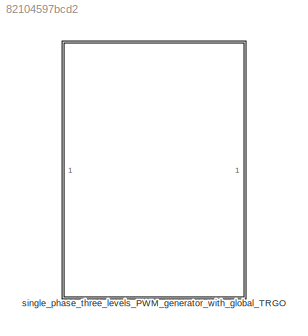
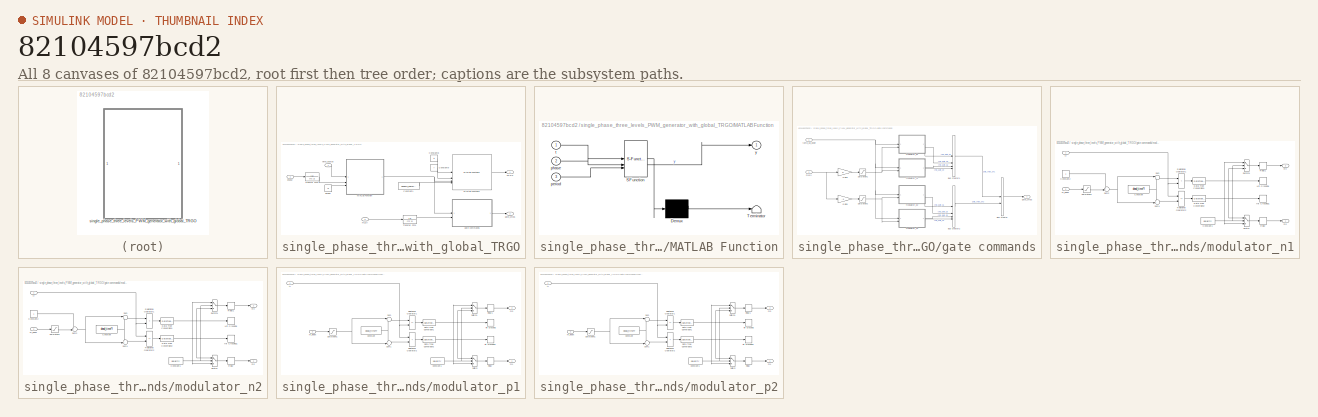
[diagram: thumbnail index - all 8 canvases of the model, root first then tree order]
MODEL slx_82104597bcd2
KIND library
CONFIG AbsTol = auto
CONFIG EnableMultiTasking = off
CONFIG FixedStep = auto
CONFIG MaxStep = auto
CONFIG MinStep = auto
CONFIG RelTol = 1e-3
CONFIG SampleTimeConstraint = Unconstrained
CONFIG SolverName = VariableStepAuto
CONFIG StartTime = 0.0
CONFIG StopTime = 10.0
BLOCK [SubSystem] single_phase_three_levels_PWM_generator_with_global_TRGO
BLOCK [Constant] single_phase_three_levels_PWM_generator_with_global_TRGO/Constant1
  Value = double_sampling
BLOCK [Constant] single_phase_three_levels_PWM_generator_with_global_TRGO/Constant8
  Value = tc
BLOCK [Constant] single_phase_three_levels_PWM_generator_with_global_TRGO/Constant9
  Value = f
BLOCK [SubSystem] single_phase_three_levels_PWM_generator_with_global_TRGO/MATLAB Function
  ErrorFcn = Stateflow.Translate.translate
  PermitHierarchicalResolution = ExplicitOnly
  SFBlockType = MATLAB Function
  SystemSampleTime = tc
  TreatAsAtomicUnit = on
BLOCK [Demux] single_phase_three_levels_PWM_generator_with_global_TRGO/MATLAB Function/ Demux 
  Outputs = 1
BLOCK [S-Function] single_phase_three_levels_PWM_generator_with_global_TRGO/MATLAB Function/ SFunction 
  EnableBusSupport = off
  FunctionName = sf_sfun
  PortCounts = [3 2]
  SFcnIsStateOwnerBlock = off
  SFunctionDeploymentMode = off
  Tag = Stateflow S-Function 61
BLOCK [Terminator] single_phase_three_levels_PWM_generator_with_global_TRGO/MATLAB Function/ Terminator 
BLOCK [Inport] single_phase_three_levels_PWM_generator_with_global_TRGO/MATLAB Function/period
  Port = 3
BLOCK [Inport] single_phase_three_levels_PWM_generator_with_global_TRGO/MATLAB Function/phase
  Port = 2
BLOCK [Inport] single_phase_three_levels_PWM_generator_with_global_TRGO/MATLAB Function/t
BLOCK [Outport] single_phase_three_levels_PWM_generator_with_global_TRGO/MATLAB Function/y
BLOCK [Reference] single_phase_three_levels_PWM_generator_with_global_TRGO/MATLAB Function1  REF=single_phase_pwm_modulator/Single phase two level PWM generator with global TRGO/MATLAB Function1  (lib defined in slx_75f7217e4d56)
  SourceBlock = single_phase_pwm_modulator/Single phase two level PWM generator with global TRGO/MATLAB Function1
  SourceType = SubSystem
BLOCK [Outport] single_phase_three_levels_PWM_generator_with_global_TRGO/TRGO
BLOCK [TransferFcn] single_phase_three_levels_PWM_generator_with_global_TRGO/Transfer Fcn1
  Denominator = [tc 1]
BLOCK [TransferFcn] single_phase_three_levels_PWM_generator_with_global_TRGO/Transfer Fcn2
  Denominator = [tc 1]
BLOCK [SubSystem] single_phase_three_levels_PWM_generator_with_global_TRGO/gate commands
BLOCK [BusCreator] single_phase_three_levels_PWM_generator_with_global_TRGO/gate commands/Bus Creator
  DisplayOption = bar
  InheritFromInputs = on
  Inputs = 2
BLOCK [BusCreator] single_phase_three_levels_PWM_generator_with_global_TRGO/gate commands/Bus Creator1
  DisplayOption = bar
  InheritFromInputs = on
  Inputs = 4
BLOCK [BusCreator] single_phase_three_levels_PWM_generator_with_global_TRGO/gate commands/Bus Creator2
  DisplayOption = bar
  InheritFromInputs = on
  Inputs = 4
BLOCK [Gain] single_phase_three_levels_PWM_generator_with_global_TRGO/gate commands/Gain3
BLOCK [Gain] single_phase_three_levels_PWM_generator_with_global_TRGO/gate commands/Gain5
  Gain = -1
BLOCK [Saturate] single_phase_three_levels_PWM_generator_with_global_TRGO/gate commands/Saturation1
  LowerLimit = m_low
  UpperLimit = m_up
BLOCK [Saturate] single_phase_three_levels_PWM_generator_with_global_TRGO/gate commands/Saturation2
  LowerLimit = m_low
  UpperLimit = m_up
BLOCK [Outport] single_phase_three_levels_PWM_generator_with_global_TRGO/gate commands/gate_cmds
BLOCK [Inport] single_phase_three_levels_PWM_generator_with_global_TRGO/gate commands/m12()
  Port = 2
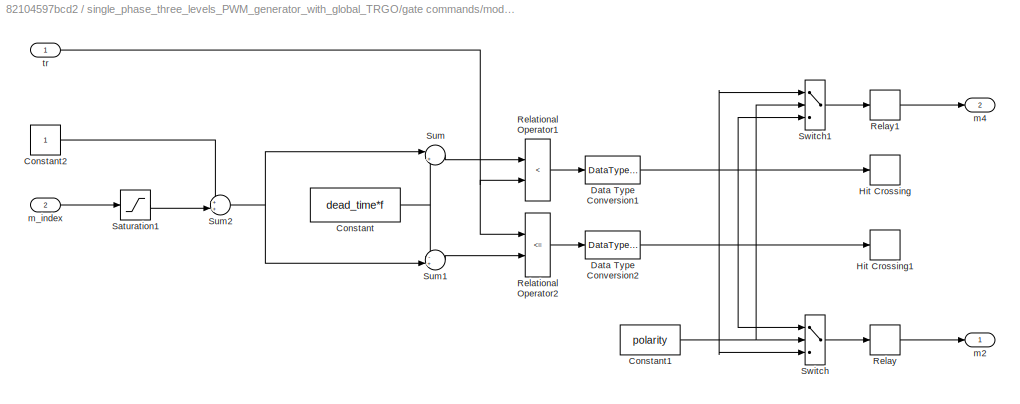
BLOCK [SubSystem] single_phase_three_levels_PWM_generator_with_global_TRGO/gate commands/modulator_n1
BLOCK [Constant] single_phase_three_levels_PWM_generator_with_global_TRGO/gate commands/modulator_n1/Constant
  Value = dead_time*f
BLOCK [Constant] single_phase_three_levels_PWM_generator_with_global_TRGO/gate commands/modulator_n1/Constant1
  Value = polarity
BLOCK [Constant] single_phase_three_levels_PWM_generator_with_global_TRGO/gate commands/modulator_n1/Constant2
BLOCK [DataTypeConversion] single_phase_three_levels_PWM_generator_with_global_TRGO/gate commands/modulator_n1/Data Type Conversion1
  OutDataTypeStr = double
BLOCK [DataTypeConversion] single_phase_three_levels_PWM_generator_with_global_TRGO/gate commands/modulator_n1/Data Type Conversion2
  OutDataTypeStr = double
BLOCK [HitCross] single_phase_three_levels_PWM_generator_with_global_TRGO/gate commands/modulator_n1/Hit Crossing
  ShowOutputPort = off
BLOCK [HitCross] single_phase_three_levels_PWM_generator_with_global_TRGO/gate commands/modulator_n1/Hit Crossing1
  ShowOutputPort = off
BLOCK [RelationalOperator] single_phase_three_levels_PWM_generator_with_global_TRGO/gate commands/modulator_n1/Relational Operator1
  InputSameDT = off
  Operator = <
BLOCK [RelationalOperator] single_phase_three_levels_PWM_generator_with_global_TRGO/gate commands/modulator_n1/Relational Operator2
  InputSameDT = off
  Operator = <=
BLOCK [Relay] single_phase_three_levels_PWM_generator_with_global_TRGO/gate commands/modulator_n1/Relay
  OffOutputValue = neg_cmd_gate
  OnOutputValue = pos_cmd_gate
BLOCK [Relay] single_phase_three_levels_PWM_generator_with_global_TRGO/gate commands/modulator_n1/Relay1
  OffOutputValue = neg_cmd_gate
  OnOutputValue = pos_cmd_gate
BLOCK [Saturate] single_phase_three_levels_PWM_generator_with_global_TRGO/gate commands/modulator_n1/Saturation1
  LowerLimit = m_low
  UpperLimit = 0
BLOCK [Sum] single_phase_three_levels_PWM_generator_with_global_TRGO/gate commands/modulator_n1/Sum
  Inputs = |++
  SaturateOnIntegerOverflow = on
BLOCK [Sum] single_phase_three_levels_PWM_generator_with_global_TRGO/gate commands/modulator_n1/Sum1
  Inputs = -+|
  SaturateOnIntegerOverflow = on
BLOCK [Sum] single_phase_three_levels_PWM_generator_with_global_TRGO/gate commands/modulator_n1/Sum2
  Inputs = ++|
  SaturateOnIntegerOverflow = on
BLOCK [Switch] single_phase_three_levels_PWM_generator_with_global_TRGO/gate commands/modulator_n1/Switch
  Criteria = u2 > Threshold
  InputSameDT = off
  SaturateOnIntegerOverflow = off
BLOCK [Switch] single_phase_three_levels_PWM_generator_with_global_TRGO/gate commands/modulator_n1/Switch1
  Criteria = u2 > Threshold
  InputSameDT = off
  SaturateOnIntegerOverflow = off
BLOCK [Outport] single_phase_three_levels_PWM_generator_with_global_TRGO/gate commands/modulator_n1/m2
BLOCK [Outport] single_phase_three_levels_PWM_generator_with_global_TRGO/gate commands/modulator_n1/m4
  Port = 2
BLOCK [Inport] single_phase_three_levels_PWM_generator_with_global_TRGO/gate commands/modulator_n1/m_index
  Port = 2
BLOCK [Inport] single_phase_three_levels_PWM_generator_with_global_TRGO/gate commands/modulator_n1/tr
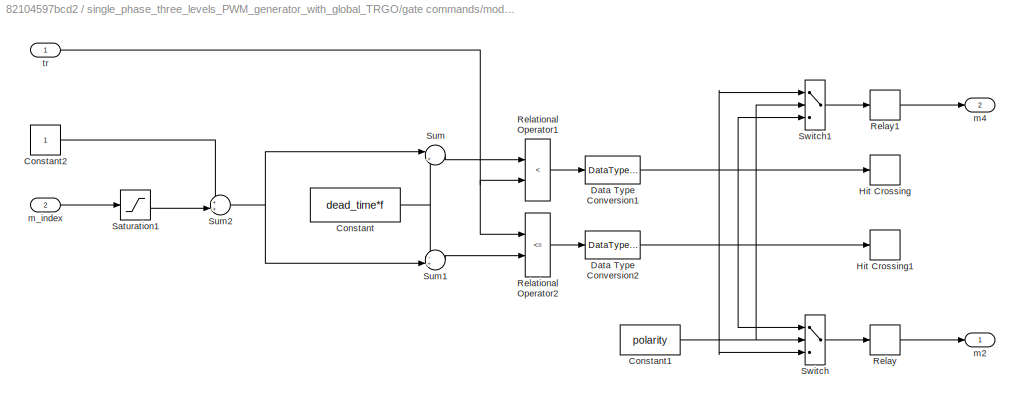
BLOCK [SubSystem] single_phase_three_levels_PWM_generator_with_global_TRGO/gate commands/modulator_n2
BLOCK [Constant] single_phase_three_levels_PWM_generator_with_global_TRGO/gate commands/modulator_n2/Constant
  Value = dead_time*f
BLOCK [Constant] single_phase_three_levels_PWM_generator_with_global_TRGO/gate commands/modulator_n2/Constant1
  Value = polarity
BLOCK [Constant] single_phase_three_levels_PWM_generator_with_global_TRGO/gate commands/modulator_n2/Constant2
BLOCK [DataTypeConversion] single_phase_three_levels_PWM_generator_with_global_TRGO/gate commands/modulator_n2/Data Type Conversion1
  OutDataTypeStr = double
BLOCK [DataTypeConversion] single_phase_three_levels_PWM_generator_with_global_TRGO/gate commands/modulator_n2/Data Type Conversion2
  OutDataTypeStr = double
BLOCK [HitCross] single_phase_three_levels_PWM_generator_with_global_TRGO/gate commands/modulator_n2/Hit Crossing
  ShowOutputPort = off
BLOCK [HitCross] single_phase_three_levels_PWM_generator_with_global_TRGO/gate commands/modulator_n2/Hit Crossing1
  ShowOutputPort = off
BLOCK [RelationalOperator] single_phase_three_levels_PWM_generator_with_global_TRGO/gate commands/modulator_n2/Relational Operator1
  InputSameDT = off
  Operator = <
BLOCK [RelationalOperator] single_phase_three_levels_PWM_generator_with_global_TRGO/gate commands/modulator_n2/Relational Operator2
  InputSameDT = off
  Operator = <=
BLOCK [Relay] single_phase_three_levels_PWM_generator_with_global_TRGO/gate commands/modulator_n2/Relay
  OffOutputValue = neg_cmd_gate
  OnOutputValue = pos_cmd_gate
BLOCK [Relay] single_phase_three_levels_PWM_generator_with_global_TRGO/gate commands/modulator_n2/Relay1
  OffOutputValue = neg_cmd_gate
  OnOutputValue = pos_cmd_gate
BLOCK [Saturate] single_phase_three_levels_PWM_generator_with_global_TRGO/gate commands/modulator_n2/Saturation1
  LowerLimit = m_low
  UpperLimit = 0
BLOCK [Sum] single_phase_three_levels_PWM_generator_with_global_TRGO/gate commands/modulator_n2/Sum
  Inputs = |++
  SaturateOnIntegerOverflow = on
BLOCK [Sum] single_phase_three_levels_PWM_generator_with_global_TRGO/gate commands/modulator_n2/Sum1
  Inputs = -+|
  SaturateOnIntegerOverflow = on
BLOCK [Sum] single_phase_three_levels_PWM_generator_with_global_TRGO/gate commands/modulator_n2/Sum2
  Inputs = ++|
  SaturateOnIntegerOverflow = on
BLOCK [Switch] single_phase_three_levels_PWM_generator_with_global_TRGO/gate commands/modulator_n2/Switch
  Criteria = u2 > Threshold
  InputSameDT = off
  SaturateOnIntegerOverflow = off
BLOCK [Switch] single_phase_three_levels_PWM_generator_with_global_TRGO/gate commands/modulator_n2/Switch1
  Criteria = u2 > Threshold
  InputSameDT = off
  SaturateOnIntegerOverflow = off
BLOCK [Outport] single_phase_three_levels_PWM_generator_with_global_TRGO/gate commands/modulator_n2/m2
BLOCK [Outport] single_phase_three_levels_PWM_generator_with_global_TRGO/gate commands/modulator_n2/m4
  Port = 2
BLOCK [Inport] single_phase_three_levels_PWM_generator_with_global_TRGO/gate commands/modulator_n2/m_index
  Port = 2
BLOCK [Inport] single_phase_three_levels_PWM_generator_with_global_TRGO/gate commands/modulator_n2/tr
BLOCK [SubSystem] single_phase_three_levels_PWM_generator_with_global_TRGO/gate commands/modulator_p1
BLOCK [Constant] single_phase_three_levels_PWM_generator_with_global_TRGO/gate commands/modulator_p1/Constant
  Value = dead_time*f
BLOCK [Constant] single_phase_three_levels_PWM_generator_with_global_TRGO/gate commands/modulator_p1/Constant1
  Value = polarity
BLOCK [DataTypeConversion] single_phase_three_levels_PWM_generator_with_global_TRGO/gate commands/modulator_p1/Data Type Conversion1
  OutDataTypeStr = double
BLOCK [DataTypeConversion] single_phase_three_levels_PWM_generator_with_global_TRGO/gate commands/modulator_p1/Data Type Conversion2
  OutDataTypeStr = double
BLOCK [HitCross] single_phase_three_levels_PWM_generator_with_global_TRGO/gate commands/modulator_p1/Hit Crossing
  ShowOutputPort = off
BLOCK [HitCross] single_phase_three_levels_PWM_generator_with_global_TRGO/gate commands/modulator_p1/Hit Crossing1
  ShowOutputPort = off
BLOCK [RelationalOperator] single_phase_three_levels_PWM_generator_with_global_TRGO/gate commands/modulator_p1/Relational Operator1
  InputSameDT = off
  Operator = <=
BLOCK [RelationalOperator] single_phase_three_levels_PWM_generator_with_global_TRGO/gate commands/modulator_p1/Relational Operator2
  InputSameDT = off
  Operator = <
BLOCK [Relay] single_phase_three_levels_PWM_generator_with_global_TRGO/gate commands/modulator_p1/Relay
  OffOutputValue = neg_cmd_gate
  OnOutputValue = pos_cmd_gate
  OnSwitchValue = 2*eps
BLOCK [Relay] single_phase_three_levels_PWM_generator_with_global_TRGO/gate commands/modulator_p1/Relay1
  OffOutputValue = neg_cmd_gate
  OnOutputValue = pos_cmd_gate
BLOCK [Saturate] single_phase_three_levels_PWM_generator_with_global_TRGO/gate commands/modulator_p1/Saturation1
  LowerLimit = 0
  UpperLimit = m_up
BLOCK [Sum] single_phase_three_levels_PWM_generator_with_global_TRGO/gate commands/modulator_p1/Sum
  Inputs = |++
  SaturateOnIntegerOverflow = on
BLOCK [Sum] single_phase_three_levels_PWM_generator_with_global_TRGO/gate commands/modulator_p1/Sum1
  Inputs = -+|
  SaturateOnIntegerOverflow = on
BLOCK [Switch] single_phase_three_levels_PWM_generator_with_global_TRGO/gate commands/modulator_p1/Switch
  Criteria = u2 > Threshold
  InputSameDT = off
  SaturateOnIntegerOverflow = off
BLOCK [Switch] single_phase_three_levels_PWM_generator_with_global_TRGO/gate commands/modulator_p1/Switch1
  Criteria = u2 > Threshold
  InputSameDT = off
  SaturateOnIntegerOverflow = off
BLOCK [Outport] single_phase_three_levels_PWM_generator_with_global_TRGO/gate commands/modulator_p1/m1
BLOCK [Outport] single_phase_three_levels_PWM_generator_with_global_TRGO/gate commands/modulator_p1/m3
  Port = 2
BLOCK [Inport] single_phase_three_levels_PWM_generator_with_global_TRGO/gate commands/modulator_p1/m_index
  Port = 2
BLOCK [Inport] single_phase_three_levels_PWM_generator_with_global_TRGO/gate commands/modulator_p1/tr
BLOCK [SubSystem] single_phase_three_levels_PWM_generator_with_global_TRGO/gate commands/modulator_p2
BLOCK [Constant] single_phase_three_levels_PWM_generator_with_global_TRGO/gate commands/modulator_p2/Constant
  Value = dead_time*f
BLOCK [Constant] single_phase_three_levels_PWM_generator_with_global_TRGO/gate commands/modulator_p2/Constant1
  Value = polarity
BLOCK [DataTypeConversion] single_phase_three_levels_PWM_generator_with_global_TRGO/gate commands/modulator_p2/Data Type Conversion1
  OutDataTypeStr = double
BLOCK [DataTypeConversion] single_phase_three_levels_PWM_generator_with_global_TRGO/gate commands/modulator_p2/Data Type Conversion2
  OutDataTypeStr = double
BLOCK [HitCross] single_phase_three_levels_PWM_generator_with_global_TRGO/gate commands/modulator_p2/Hit Crossing
  ShowOutputPort = off
BLOCK [HitCross] single_phase_three_levels_PWM_generator_with_global_TRGO/gate commands/modulator_p2/Hit Crossing1
  ShowOutputPort = off
BLOCK [RelationalOperator] single_phase_three_levels_PWM_generator_with_global_TRGO/gate commands/modulator_p2/Relational Operator1
  InputSameDT = off
  Operator = <=
BLOCK [RelationalOperator] single_phase_three_levels_PWM_generator_with_global_TRGO/gate commands/modulator_p2/Relational Operator2
  InputSameDT = off
  Operator = <
BLOCK [Relay] single_phase_three_levels_PWM_generator_with_global_TRGO/gate commands/modulator_p2/Relay
  OffOutputValue = neg_cmd_gate
  OnOutputValue = pos_cmd_gate
  OnSwitchValue = 2*eps
BLOCK [Relay] single_phase_three_levels_PWM_generator_with_global_TRGO/gate commands/modulator_p2/Relay1
  OffOutputValue = neg_cmd_gate
  OnOutputValue = pos_cmd_gate
BLOCK [Saturate] single_phase_three_levels_PWM_generator_with_global_TRGO/gate commands/modulator_p2/Saturation1
  LowerLimit = 0
  UpperLimit = m_up
BLOCK [Sum] single_phase_three_levels_PWM_generator_with_global_TRGO/gate commands/modulator_p2/Sum
  Inputs = |++
  SaturateOnIntegerOverflow = on
BLOCK [Sum] single_phase_three_levels_PWM_generator_with_global_TRGO/gate commands/modulator_p2/Sum1
  Inputs = -+|
  SaturateOnIntegerOverflow = on
BLOCK [Switch] single_phase_three_levels_PWM_generator_with_global_TRGO/gate commands/modulator_p2/Switch
  Criteria = u2 > Threshold
  InputSameDT = off
  SaturateOnIntegerOverflow = off
BLOCK [Switch] single_phase_three_levels_PWM_generator_with_global_TRGO/gate commands/modulator_p2/Switch1
  Criteria = u2 > Threshold
  InputSameDT = off
  SaturateOnIntegerOverflow = off
BLOCK [Outport] single_phase_three_levels_PWM_generator_with_global_TRGO/gate commands/modulator_p2/m1
BLOCK [Outport] single_phase_three_levels_PWM_generator_with_global_TRGO/gate commands/modulator_p2/m3
  Port = 2
BLOCK [Inport] single_phase_three_levels_PWM_generator_with_global_TRGO/gate commands/modulator_p2/m_index
  Port = 2
BLOCK [Inport] single_phase_three_levels_PWM_generator_with_global_TRGO/gate commands/modulator_p2/tr
BLOCK [Inport] single_phase_three_levels_PWM_generator_with_global_TRGO/gate commands/ramp_up_down
BLOCK [Outport] single_phase_three_levels_PWM_generator_with_global_TRGO/gate_cmds
  Port = 2
BLOCK [Inport] single_phase_three_levels_PWM_generator_with_global_TRGO/m12()
  Port = 3
BLOCK [Constant] single_phase_three_levels_PWM_generator_with_global_TRGO/period
  Value = 1/f
BLOCK [Inport] single_phase_three_levels_PWM_generator_with_global_TRGO/phase
  Port = 2
BLOCK [Inport] single_phase_three_levels_PWM_generator_with_global_TRGO/time_source
LINE single_phase_three_levels_PWM_generator_with_global_TRGO/Constant1:1 -> single_phase_three_levels_PWM_generator_with_global_TRGO/MATLAB Function1:4
LINE single_phase_three_levels_PWM_generator_with_global_TRGO/Constant8:1 -> single_phase_three_levels_PWM_generator_with_global_TRGO/MATLAB Function1:1
LINE single_phase_three_levels_PWM_generator_with_global_TRGO/Constant9:1 -> single_phase_three_levels_PWM_generator_with_global_TRGO/MATLAB Function1:2
LINE single_phase_three_levels_PWM_generator_with_global_TRGO/MATLAB Function1:1 -> single_phase_three_levels_PWM_generator_with_global_TRGO/TRGO:1
NET single_phase_three_levels_PWM_generator_with_global_TRGO/MATLAB Function:1 -> single_phase_three_levels_PWM_generator_with_global_TRGO/MATLAB Function1:3, single_phase_three_levels_PWM_generator_with_global_TRGO/gate commands:1
LINE single_phase_three_levels_PWM_generator_with_global_TRGO/Transfer Fcn1:1 -> single_phase_three_levels_PWM_generator_with_global_TRGO/gate commands:2
LINE single_phase_three_levels_PWM_generator_with_global_TRGO/Transfer Fcn2:1 -> single_phase_three_levels_PWM_generator_with_global_TRGO/MATLAB Function:2
LINE single_phase_three_levels_PWM_generator_with_global_TRGO/gate commands/Bus Creator1:1 -> single_phase_three_levels_PWM_generator_with_global_TRGO/gate commands/Bus Creator:1
LINE single_phase_three_levels_PWM_generator_with_global_TRGO/gate commands/Bus Creator2:1 -> single_phase_three_levels_PWM_generator_with_global_TRGO/gate commands/Bus Creator:2
LINE single_phase_three_levels_PWM_generator_with_global_TRGO/gate commands/Bus Creator:1 -> single_phase_three_levels_PWM_generator_with_global_TRGO/gate commands/gate_cmds:1
LINE single_phase_three_levels_PWM_generator_with_global_TRGO/gate commands/Gain3:1 -> single_phase_three_levels_PWM_generator_with_global_TRGO/gate commands/Saturation1:1
LINE single_phase_three_levels_PWM_generator_with_global_TRGO/gate commands/Gain5:1 -> single_phase_three_levels_PWM_generator_with_global_TRGO/gate commands/Saturation2:1
NET single_phase_three_levels_PWM_generator_with_global_TRGO/gate commands/Saturation1:1 -> single_phase_three_levels_PWM_generator_with_global_TRGO/gate commands/modulator_n1:2, single_phase_three_levels_PWM_generator_with_global_TRGO/gate commands/modulator_p1:2
NET single_phase_three_levels_PWM_generator_with_global_TRGO/gate commands/Saturation2:1 -> single_phase_three_levels_PWM_generator_with_global_TRGO/gate commands/modulator_n2:2, single_phase_three_levels_PWM_generator_with_global_TRGO/gate commands/modulator_p2:2
NET single_phase_three_levels_PWM_generator_with_global_TRGO/gate commands/m12():1 -> single_phase_three_levels_PWM_generator_with_global_TRGO/gate commands/Gain3:1, single_phase_three_levels_PWM_generator_with_global_TRGO/gate commands/Gain5:1
NET single_phase_three_levels_PWM_generator_with_global_TRGO/gate commands/modulator_n1/Constant1:1 -> single_phase_three_levels_PWM_generator_with_global_TRGO/gate commands/modulator_n1/Switch1:2, single_phase_three_levels_PWM_generator_with_global_TRGO/gate commands/modulator_n1/Switch:2
LINE single_phase_three_levels_PWM_generator_with_global_TRGO/gate commands/modulator_n1/Constant2:1 -> single_phase_three_levels_PWM_generator_with_global_TRGO/gate commands/modulator_n1/Sum2:1
NET single_phase_three_levels_PWM_generator_with_global_TRGO/gate commands/modulator_n1/Constant:1 -> single_phase_three_levels_PWM_generator_with_global_TRGO/gate commands/modulator_n1/Sum1:1, single_phase_three_levels_PWM_generator_with_global_TRGO/gate commands/modulator_n1/Sum:2
NET single_phase_three_levels_PWM_generator_with_global_TRGO/gate commands/modulator_n1/Data Type Conversion1:1 -> single_phase_three_levels_PWM_generator_with_global_TRGO/gate commands/modulator_n1/Hit Crossing:1, single_phase_three_levels_PWM_generator_with_global_TRGO/gate commands/modulator_n1/Switch1:1, single_phase_three_levels_PWM_generator_with_global_TRGO/gate commands/modulator_n1/Switch:3
NET single_phase_three_levels_PWM_generator_with_global_TRGO/gate commands/modulator_n1/Data Type Conversion2:1 -> single_phase_three_levels_PWM_generator_with_global_TRGO/gate commands/modulator_n1/Hit Crossing1:1, single_phase_three_levels_PWM_generator_with_global_TRGO/gate commands/modulator_n1/Switch1:3, single_phase_three_levels_PWM_generator_with_global_TRGO/gate commands/modulator_n1/Switch:1
LINE single_phase_three_levels_PWM_generator_with_global_TRGO/gate commands/modulator_n1/Relational Operator1:1 -> single_phase_three_levels_PWM_generator_with_global_TRGO/gate commands/modulator_n1/Data Type Conversion1:1
LINE single_phase_three_levels_PWM_generator_with_global_TRGO/gate commands/modulator_n1/Relational Operator2:1 -> single_phase_three_levels_PWM_generator_with_global_TRGO/gate commands/modulator_n1/Data Type Conversion2:1
LINE single_phase_three_levels_PWM_generator_with_global_TRGO/gate commands/modulator_n1/Relay1:1 -> single_phase_three_levels_PWM_generator_with_global_TRGO/gate commands/modulator_n1/m4:1
LINE single_phase_three_levels_PWM_generator_with_global_TRGO/gate commands/modulator_n1/Relay:1 -> single_phase_three_levels_PWM_generator_with_global_TRGO/gate commands/modulator_n1/m2:1
LINE single_phase_three_levels_PWM_generator_with_global_TRGO/gate commands/modulator_n1/Saturation1:1 -> single_phase_three_levels_PWM_generator_with_global_TRGO/gate commands/modulator_n1/Sum2:2
LINE single_phase_three_levels_PWM_generator_with_global_TRGO/gate commands/modulator_n1/Sum1:1 -> single_phase_three_levels_PWM_generator_with_global_TRGO/gate commands/modulator_n1/Relational Operator2:2
NET single_phase_three_levels_PWM_generator_with_global_TRGO/gate commands/modulator_n1/Sum2:1 -> single_phase_three_levels_PWM_generator_with_global_TRGO/gate commands/modulator_n1/Sum1:2, single_phase_three_levels_PWM_generator_with_global_TRGO/gate commands/modulator_n1/Sum:1
LINE single_phase_three_levels_PWM_generator_with_global_TRGO/gate commands/modulator_n1/Sum:1 -> single_phase_three_levels_PWM_generator_with_global_TRGO/gate commands/modulator_n1/Relational Operator1:1
LINE single_phase_three_levels_PWM_generator_with_global_TRGO/gate commands/modulator_n1/Switch1:1 -> single_phase_three_levels_PWM_generator_with_global_TRGO/gate commands/modulator_n1/Relay1:1
LINE single_phase_three_levels_PWM_generator_with_global_TRGO/gate commands/modulator_n1/Switch:1 -> single_phase_three_levels_PWM_generator_with_global_TRGO/gate commands/modulator_n1/Relay:1
LINE single_phase_three_levels_PWM_generator_with_global_TRGO/gate commands/modulator_n1/m_index:1 -> single_phase_three_levels_PWM_generator_with_global_TRGO/gate commands/modulator_n1/Saturation1:1
NET single_phase_three_levels_PWM_generator_with_global_TRGO/gate commands/modulator_n1/tr:1 -> single_phase_three_levels_PWM_generator_with_global_TRGO/gate commands/modulator_n1/Relational Operator1:2, single_phase_three_levels_PWM_generator_with_global_TRGO/gate commands/modulator_n1/Relational Operator2:1
LINE single_phase_three_levels_PWM_generator_with_global_TRGO/gate commands/modulator_n1:1 -> single_phase_three_levels_PWM_generator_with_global_TRGO/gate commands/Bus Creator1:3
LINE single_phase_three_levels_PWM_generator_with_global_TRGO/gate commands/modulator_n1:2 -> single_phase_three_levels_PWM_generator_with_global_TRGO/gate commands/Bus Creator1:4
NET single_phase_three_levels_PWM_generator_with_global_TRGO/gate commands/modulator_n2/Constant1:1 -> single_phase_three_levels_PWM_generator_with_global_TRGO/gate commands/modulator_n2/Switch1:2, single_phase_three_levels_PWM_generator_with_global_TRGO/gate commands/modulator_n2/Switch:2
LINE single_phase_three_levels_PWM_generator_with_global_TRGO/gate commands/modulator_n2/Constant2:1 -> single_phase_three_levels_PWM_generator_with_global_TRGO/gate commands/modulator_n2/Sum2:1
NET single_phase_three_levels_PWM_generator_with_global_TRGO/gate commands/modulator_n2/Constant:1 -> single_phase_three_levels_PWM_generator_with_global_TRGO/gate commands/modulator_n2/Sum1:1, single_phase_three_levels_PWM_generator_with_global_TRGO/gate commands/modulator_n2/Sum:2
NET single_phase_three_levels_PWM_generator_with_global_TRGO/gate commands/modulator_n2/Data Type Conversion1:1 -> single_phase_three_levels_PWM_generator_with_global_TRGO/gate commands/modulator_n2/Hit Crossing:1, single_phase_three_levels_PWM_generator_with_global_TRGO/gate commands/modulator_n2/Switch1:1, single_phase_three_levels_PWM_generator_with_global_TRGO/gate commands/modulator_n2/Switch:3
NET single_phase_three_levels_PWM_generator_with_global_TRGO/gate commands/modulator_n2/Data Type Conversion2:1 -> single_phase_three_levels_PWM_generator_with_global_TRGO/gate commands/modulator_n2/Hit Crossing1:1, single_phase_three_levels_PWM_generator_with_global_TRGO/gate commands/modulator_n2/Switch1:3, single_phase_three_levels_PWM_generator_with_global_TRGO/gate commands/modulator_n2/Switch:1
LINE single_phase_three_levels_PWM_generator_with_global_TRGO/gate commands/modulator_n2/Relational Operator1:1 -> single_phase_three_levels_PWM_generator_with_global_TRGO/gate commands/modulator_n2/Data Type Conversion1:1
LINE single_phase_three_levels_PWM_generator_with_global_TRGO/gate commands/modulator_n2/Relational Operator2:1 -> single_phase_three_levels_PWM_generator_with_global_TRGO/gate commands/modulator_n2/Data Type Conversion2:1
LINE single_phase_three_levels_PWM_generator_with_global_TRGO/gate commands/modulator_n2/Relay1:1 -> single_phase_three_levels_PWM_generator_with_global_TRGO/gate commands/modulator_n2/m4:1
LINE single_phase_three_levels_PWM_generator_with_global_TRGO/gate commands/modulator_n2/Relay:1 -> single_phase_three_levels_PWM_generator_with_global_TRGO/gate commands/modulator_n2/m2:1
LINE single_phase_three_levels_PWM_generator_with_global_TRGO/gate commands/modulator_n2/Saturation1:1 -> single_phase_three_levels_PWM_generator_with_global_TRGO/gate commands/modulator_n2/Sum2:2
LINE single_phase_three_levels_PWM_generator_with_global_TRGO/gate commands/modulator_n2/Sum1:1 -> single_phase_three_levels_PWM_generator_with_global_TRGO/gate commands/modulator_n2/Relational Operator2:2
NET single_phase_three_levels_PWM_generator_with_global_TRGO/gate commands/modulator_n2/Sum2:1 -> single_phase_three_levels_PWM_generator_with_global_TRGO/gate commands/modulator_n2/Sum1:2, single_phase_three_levels_PWM_generator_with_global_TRGO/gate commands/modulator_n2/Sum:1
LINE single_phase_three_levels_PWM_generator_with_global_TRGO/gate commands/modulator_n2/Sum:1 -> single_phase_three_levels_PWM_generator_with_global_TRGO/gate commands/modulator_n2/Relational Operator1:1
LINE single_phase_three_levels_PWM_generator_with_global_TRGO/gate commands/modulator_n2/Switch1:1 -> single_phase_three_levels_PWM_generator_with_global_TRGO/gate commands/modulator_n2/Relay1:1
LINE single_phase_three_levels_PWM_generator_with_global_TRGO/gate commands/modulator_n2/Switch:1 -> single_phase_three_levels_PWM_generator_with_global_TRGO/gate commands/modulator_n2/Relay:1
LINE single_phase_three_levels_PWM_generator_with_global_TRGO/gate commands/modulator_n2/m_index:1 -> single_phase_three_levels_PWM_generator_with_global_TRGO/gate commands/modulator_n2/Saturation1:1
NET single_phase_three_levels_PWM_generator_with_global_TRGO/gate commands/modulator_n2/tr:1 -> single_phase_three_levels_PWM_generator_with_global_TRGO/gate commands/modulator_n2/Relational Operator1:2, single_phase_three_levels_PWM_generator_with_global_TRGO/gate commands/modulator_n2/Relational Operator2:1
LINE single_phase_three_levels_PWM_generator_with_global_TRGO/gate commands/modulator_n2:1 -> single_phase_three_levels_PWM_generator_with_global_TRGO/gate commands/Bus Creator2:3
LINE single_phase_three_levels_PWM_generator_with_global_TRGO/gate commands/modulator_n2:2 -> single_phase_three_levels_PWM_generator_with_global_TRGO/gate commands/Bus Creator2:4
NET single_phase_three_levels_PWM_generator_with_global_TRGO/gate commands/modulator_p1/Constant1:1 -> single_phase_three_levels_PWM_generator_with_global_TRGO/gate commands/modulator_p1/Switch1:2, single_phase_three_levels_PWM_generator_with_global_TRGO/gate commands/modulator_p1/Switch:2
NET single_phase_three_levels_PWM_generator_with_global_TRGO/gate commands/modulator_p1/Constant:1 -> single_phase_three_levels_PWM_generator_with_global_TRGO/gate commands/modulator_p1/Sum1:1, single_phase_three_levels_PWM_generator_with_global_TRGO/gate commands/modulator_p1/Sum:2
NET single_phase_three_levels_PWM_generator_with_global_TRGO/gate commands/modulator_p1/Data Type Conversion1:1 -> single_phase_three_levels_PWM_generator_with_global_TRGO/gate commands/modulator_p1/Hit Crossing:1, single_phase_three_levels_PWM_generator_with_global_TRGO/gate commands/modulator_p1/Switch1:1, single_phase_three_levels_PWM_generator_with_global_TRGO/gate commands/modulator_p1/Switch:3
NET single_phase_three_levels_PWM_generator_with_global_TRGO/gate commands/modulator_p1/Data Type Conversion2:1 -> single_phase_three_levels_PWM_generator_with_global_TRGO/gate commands/modulator_p1/Hit Crossing1:1, single_phase_three_levels_PWM_generator_with_global_TRGO/gate commands/modulator_p1/Switch1:3, single_phase_three_levels_PWM_generator_with_global_TRGO/gate commands/modulator_p1/Switch:1
LINE single_phase_three_levels_PWM_generator_with_global_TRGO/gate commands/modulator_p1/Relational Operator1:1 -> single_phase_three_levels_PWM_generator_with_global_TRGO/gate commands/modulator_p1/Data Type Conversion1:1
LINE single_phase_three_levels_PWM_generator_with_global_TRGO/gate commands/modulator_p1/Relational Operator2:1 -> single_phase_three_levels_PWM_generator_with_global_TRGO/gate commands/modulator_p1/Data Type Conversion2:1
LINE single_phase_three_levels_PWM_generator_with_global_TRGO/gate commands/modulator_p1/Relay1:1 -> single_phase_three_levels_PWM_generator_with_global_TRGO/gate commands/modulator_p1/m3:1
LINE single_phase_three_levels_PWM_generator_with_global_TRGO/gate commands/modulator_p1/Relay:1 -> single_phase_three_levels_PWM_generator_with_global_TRGO/gate commands/modulator_p1/m1:1
NET single_phase_three_levels_PWM_generator_with_global_TRGO/gate commands/modulator_p1/Saturation1:1 -> single_phase_three_levels_PWM_generator_with_global_TRGO/gate commands/modulator_p1/Sum1:2, single_phase_three_levels_PWM_generator_with_global_TRGO/gate commands/modulator_p1/Sum:1
LINE single_phase_three_levels_PWM_generator_with_global_TRGO/gate commands/modulator_p1/Sum1:1 -> single_phase_three_levels_PWM_generator_with_global_TRGO/gate commands/modulator_p1/Relational Operator2:2
LINE single_phase_three_levels_PWM_generator_with_global_TRGO/gate commands/modulator_p1/Sum:1 -> single_phase_three_levels_PWM_generator_with_global_TRGO/gate commands/modulator_p1/Relational Operator1:1
LINE single_phase_three_levels_PWM_generator_with_global_TRGO/gate commands/modulator_p1/Switch1:1 -> single_phase_three_levels_PWM_generator_with_global_TRGO/gate commands/modulator_p1/Relay1:1
LINE single_phase_three_levels_PWM_generator_with_global_TRGO/gate commands/modulator_p1/Switch:1 -> single_phase_three_levels_PWM_generator_with_global_TRGO/gate commands/modulator_p1/Relay:1
LINE single_phase_three_levels_PWM_generator_with_global_TRGO/gate commands/modulator_p1/m_index:1 -> single_phase_three_levels_PWM_generator_with_global_TRGO/gate commands/modulator_p1/Saturation1:1
NET single_phase_three_levels_PWM_generator_with_global_TRGO/gate commands/modulator_p1/tr:1 -> single_phase_three_levels_PWM_generator_with_global_TRGO/gate commands/modulator_p1/Relational Operator1:2, single_phase_three_levels_PWM_generator_with_global_TRGO/gate commands/modulator_p1/Relational Operator2:1
LINE single_phase_three_levels_PWM_generator_with_global_TRGO/gate commands/modulator_p1:1 -> single_phase_three_levels_PWM_generator_with_global_TRGO/gate commands/Bus Creator1:1
LINE single_phase_three_levels_PWM_generator_with_global_TRGO/gate commands/modulator_p1:2 -> single_phase_three_levels_PWM_generator_with_global_TRGO/gate commands/Bus Creator1:2
NET single_phase_three_levels_PWM_generator_with_global_TRGO/gate commands/modulator_p2/Constant1:1 -> single_phase_three_levels_PWM_generator_with_global_TRGO/gate commands/modulator_p2/Switch1:2, single_phase_three_levels_PWM_generator_with_global_TRGO/gate commands/modulator_p2/Switch:2
NET single_phase_three_levels_PWM_generator_with_global_TRGO/gate commands/modulator_p2/Constant:1 -> single_phase_three_levels_PWM_generator_with_global_TRGO/gate commands/modulator_p2/Sum1:1, single_phase_three_levels_PWM_generator_with_global_TRGO/gate commands/modulator_p2/Sum:2
NET single_phase_three_levels_PWM_generator_with_global_TRGO/gate commands/modulator_p2/Data Type Conversion1:1 -> single_phase_three_levels_PWM_generator_with_global_TRGO/gate commands/modulator_p2/Hit Crossing:1, single_phase_three_levels_PWM_generator_with_global_TRGO/gate commands/modulator_p2/Switch1:1, single_phase_three_levels_PWM_generator_with_global_TRGO/gate commands/modulator_p2/Switch:3
NET single_phase_three_levels_PWM_generator_with_global_TRGO/gate commands/modulator_p2/Data Type Conversion2:1 -> single_phase_three_levels_PWM_generator_with_global_TRGO/gate commands/modulator_p2/Hit Crossing1:1, single_phase_three_levels_PWM_generator_with_global_TRGO/gate commands/modulator_p2/Switch1:3, single_phase_three_levels_PWM_generator_with_global_TRGO/gate commands/modulator_p2/Switch:1
LINE single_phase_three_levels_PWM_generator_with_global_TRGO/gate commands/modulator_p2/Relational Operator1:1 -> single_phase_three_levels_PWM_generator_with_global_TRGO/gate commands/modulator_p2/Data Type Conversion1:1
LINE single_phase_three_levels_PWM_generator_with_global_TRGO/gate commands/modulator_p2/Relational Operator2:1 -> single_phase_three_levels_PWM_generator_with_global_TRGO/gate commands/modulator_p2/Data Type Conversion2:1
LINE single_phase_three_levels_PWM_generator_with_global_TRGO/gate commands/modulator_p2/Relay1:1 -> single_phase_three_levels_PWM_generator_with_global_TRGO/gate commands/modulator_p2/m3:1
LINE single_phase_three_levels_PWM_generator_with_global_TRGO/gate commands/modulator_p2/Relay:1 -> single_phase_three_levels_PWM_generator_with_global_TRGO/gate commands/modulator_p2/m1:1
NET single_phase_three_levels_PWM_generator_with_global_TRGO/gate commands/modulator_p2/Saturation1:1 -> single_phase_three_levels_PWM_generator_with_global_TRGO/gate commands/modulator_p2/Sum1:2, single_phase_three_levels_PWM_generator_with_global_TRGO/gate commands/modulator_p2/Sum:1
LINE single_phase_three_levels_PWM_generator_with_global_TRGO/gate commands/modulator_p2/Sum1:1 -> single_phase_three_levels_PWM_generator_with_global_TRGO/gate commands/modulator_p2/Relational Operator2:2
LINE single_phase_three_levels_PWM_generator_with_global_TRGO/gate commands/modulator_p2/Sum:1 -> single_phase_three_levels_PWM_generator_with_global_TRGO/gate commands/modulator_p2/Relational Operator1:1
LINE single_phase_three_levels_PWM_generator_with_global_TRGO/gate commands/modulator_p2/Switch1:1 -> single_phase_three_levels_PWM_generator_with_global_TRGO/gate commands/modulator_p2/Relay1:1
LINE single_phase_three_levels_PWM_generator_with_global_TRGO/gate commands/modulator_p2/Switch:1 -> single_phase_three_levels_PWM_generator_with_global_TRGO/gate commands/modulator_p2/Relay:1
LINE single_phase_three_levels_PWM_generator_with_global_TRGO/gate commands/modulator_p2/m_index:1 -> single_phase_three_levels_PWM_generator_with_global_TRGO/gate commands/modulator_p2/Saturation1:1
NET single_phase_three_levels_PWM_generator_with_global_TRGO/gate commands/modulator_p2/tr:1 -> single_phase_three_levels_PWM_generator_with_global_TRGO/gate commands/modulator_p2/Relational Operator1:2, single_phase_three_levels_PWM_generator_with_global_TRGO/gate commands/modulator_p2/Relational Operator2:1
LINE single_phase_three_levels_PWM_generator_with_global_TRGO/gate commands/modulator_p2:1 -> single_phase_three_levels_PWM_generator_with_global_TRGO/gate commands/Bus Creator2:1
LINE single_phase_three_levels_PWM_generator_with_global_TRGO/gate commands/modulator_p2:2 -> single_phase_three_levels_PWM_generator_with_global_TRGO/gate commands/Bus Creator2:2
NET single_phase_three_levels_PWM_generator_with_global_TRGO/gate commands/ramp_up_down:1 -> single_phase_three_levels_PWM_generator_with_global_TRGO/gate commands/modulator_n1:1, single_phase_three_levels_PWM_generator_with_global_TRGO/gate commands/modulator_n2:1, single_phase_three_levels_PWM_generator_with_global_TRGO/gate commands/modulator_p1:1, single_phase_three_levels_PWM_generator_with_global_TRGO/gate commands/modulator_p2:1
LINE single_phase_three_levels_PWM_generator_with_global_TRGO/gate commands:1 -> single_phase_three_levels_PWM_generator_with_global_TRGO/gate_cmds:1
LINE single_phase_three_levels_PWM_generator_with_global_TRGO/m12():1 -> single_phase_three_levels_PWM_generator_with_global_TRGO/Transfer Fcn1:1
LINE single_phase_three_levels_PWM_generator_with_global_TRGO/period:1 -> single_phase_three_levels_PWM_generator_with_global_TRGO/MATLAB Function:3
LINE single_phase_three_levels_PWM_generator_with_global_TRGO/phase:1 -> single_phase_three_levels_PWM_generator_with_global_TRGO/Transfer Fcn2:1
LINE single_phase_three_levels_PWM_generator_with_global_TRGO/time_source:1 -> single_phase_three_levels_PWM_generator_with_global_TRGO/MATLAB Function:1
note: NET lines group one-source signal fan-out (src -> all destinations, sorted); 1:1 wires keep LINE
CHART single_phase_three_levels_PWM_generator_with_global_TRGO/MATLAB Function states=1 transitions=1
  STATE_LABEL 'eML_blk_kernel()'
  STATE_LABEL 'SCRIPT:\nfunction y = ramp_up_down(t,phase,period)\nx = sin(2*pi/period*t - phase -pi/2);\ny = asin(x)/pi + 1/2;\n'
CHART  states=0 transitions=0
